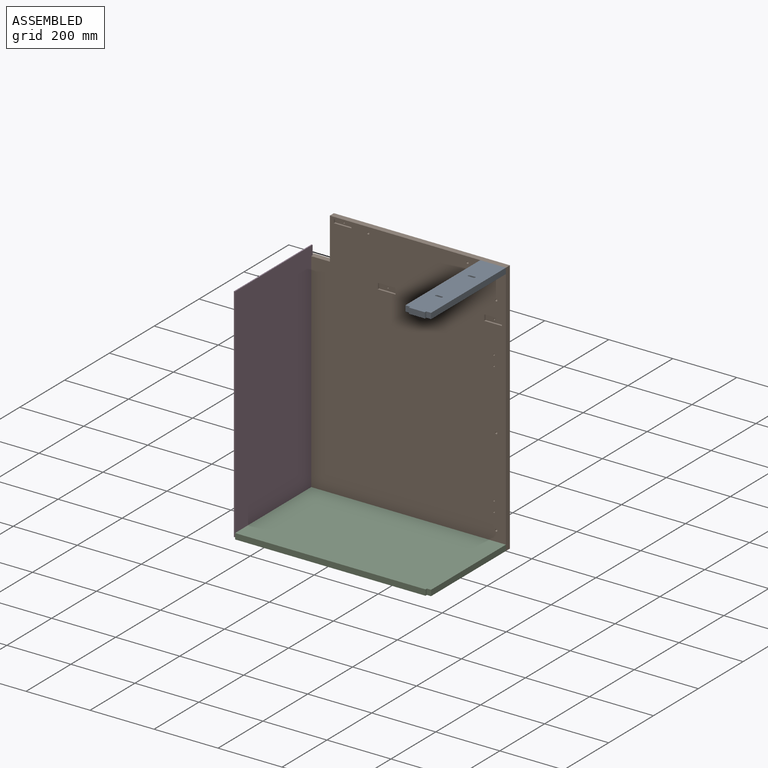
[diagram: assembled view]
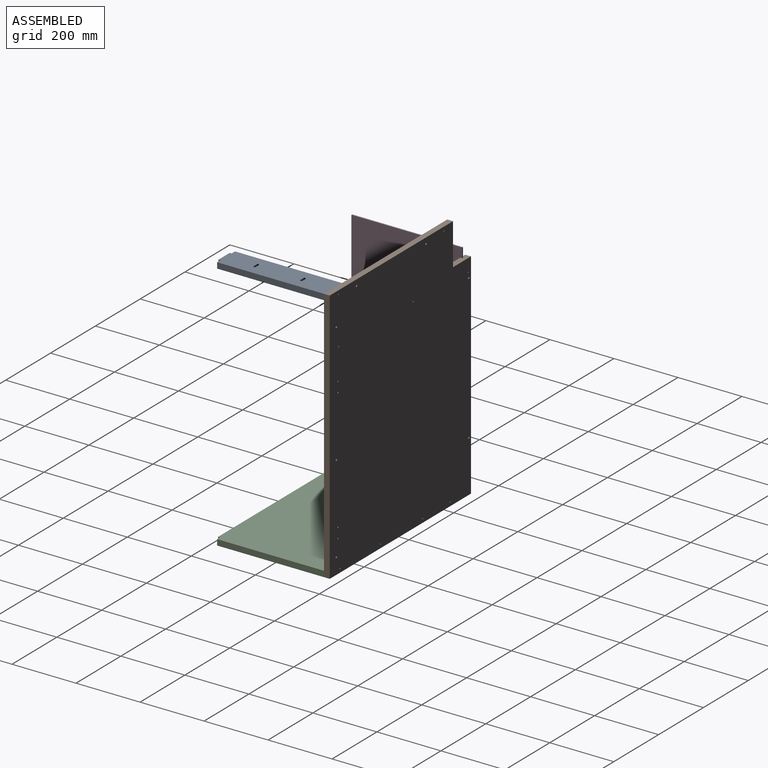
[diagram: assembled view, second angle]
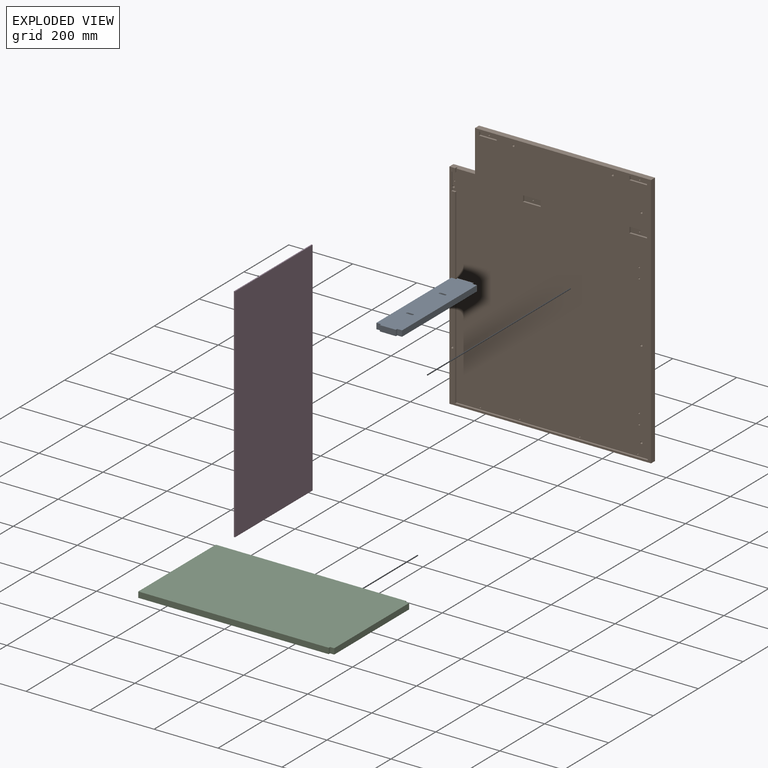
[diagram: exploded view]
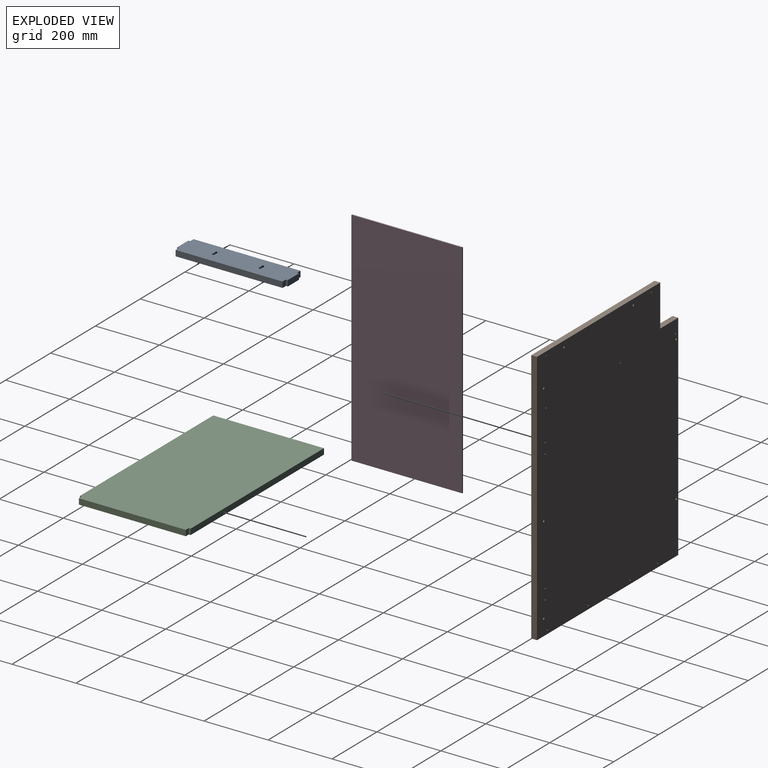
[diagram: exploded view, second angle]
ASSEMBLY  parts=4 mates=3
PART A: 22 faces, bbox 346x18x80 mm
  f0: plane 18x14.81mm, normal (1,0,0), area 266.6mm2, adj f1,f19,f20,f21
  f1: cylinder r=3.5mm len=18mm, axis (0,1,0), area 201.3mm2, adj f0,f2,f20,f21
  f2: plane 18x15mm, normal (-1,0,0), area 270mm2, adj f1,f19,f20,f21
  f3: plane 18x14.81mm, normal (1,0,0), area 266.6mm2, adj f4,f17,f20,f21
  f4: cylinder r=3.5mm len=18mm, axis (0,1,0), area 201.3mm2, adj f3,f5,f20,f21
  f5: plane 18x15mm, normal (-1,0,0), area 270mm2, adj f4,f17,f20,f21
  f6: plane 18x15mm, normal (-1,0,0), area 270mm2, adj f7,f18,f20,f21
  f7: plane 334x18mm, normal (0,0,-1), area 6012mm2, adj f6,f8,f20,f21
  f8: plane 18x15mm, normal (1,0,0), area 270mm2, adj f7,f9,f20,f21
  f9: plane 18x6mm, normal (0,0,-1), area 108mm2, adj f8,f10,f20,f21
  f10: plane 50x18mm, normal (1,0,0), area 900mm2, adj f9,f11,f20,f21
  f11: plane 18x6mm, normal (0,0,1), area 108mm2, adj f10,f12,f20,f21
  f12: plane 18x15mm, normal (1,0,0), area 270mm2, adj f11,f13,f20,f21
  f13: plane 334x18mm, normal (0,0,1), area 6012mm2, adj f12,f14,f20,f21
  f14: plane 18x15mm, normal (-1,0,0), area 270mm2, adj f13,f15,f20,f21
  f15: plane 18x6mm, normal (0,0,1), area 108mm2, adj f14,f16,f20,f21
  f16: plane 50x18mm, normal (-1,0,0), area 900mm2, adj f15,f18,f20,f21
  f17: cylinder r=3.5mm len=18mm, axis (0,1,0), area 197.9mm2, adj f3,f5,f20,f21
  f18: plane 18x6mm, normal (0,0,-1), area 108mm2, adj f6,f16,f20,f21
  f19: cylinder r=3.5mm len=18mm, axis (0,1,0), area 197.9mm2, adj f0,f2,f20,f21
  f20: plane 346x80mm, normal (0,-1,0), area 27033.1mm2, adj f0,f1,f2,f3,f4,f5,f6,f7
  f21: plane 346x80mm, normal (0,1,0), area 27033.1mm2, adj f0,f1,f2,f3,f4,f5,f6,f7
PART B: 59 faces, bbox 630x18x800 mm
  f0: plane 664x614mm, normal (0,-1,0), area 10396.4mm2, adj f5,f12,f13,f14,f15,f16,f28,f32
  f1: plane 55x12mm, normal (0,-1,0), area 647.4mm2, adj f11,f41,f42,f43,f53
  f2: plane 55x18mm, normal (0,-1,0), area 977.4mm2, adj f10,f44,f45,f46,f54
  f3: plane 55x18mm, normal (0,-1,0), area 977.4mm2, adj f9,f47,f48,f49,f55
  f4: plane 130x18mm, normal (-1,0,0), area 2340mm2, adj f5,f27,f30,f58
  f5: plane 80x18mm, normal (0,0,1), area 1416mm2, adj f0,f4,f6,f30,f38,f39,f58
  f6: plane 670x18mm, normal (-1,0,0), area 12060mm2, adj f5,f7,f30,f58
  f7: plane 630x18mm, normal (0,0,-1), area 11340mm2, adj f6,f8,f30,f58
  f8: plane 800x18mm, normal (1,0,0), area 14400mm2, adj f7,f27,f30,f58
  f9: cylinder r=2mm len=12mm, axis (0,-1,0), area 150.8mm2, adj f3,f30
  f10: cylinder r=2mm len=12mm, axis (0,-1,0), area 150.8mm2, adj f2,f30
  f11: cylinder r=2mm len=12mm, axis (0,-1,0), area 150.8mm2, adj f1,f30
  f12: cylinder r=2mm len=12mm, axis (0,-1,0), area 150.8mm2, adj f0,f30
  f13: cylinder r=2mm len=12mm, axis (0,-1,0), area 150.8mm2, adj f0,f30
  f14: cylinder r=2mm len=12mm, axis (0,-1,0), area 150.8mm2, adj f0,f30
  f15: cylinder r=2mm len=12mm, axis (0,-1,0), area 150.8mm2, adj f0,f30
  f16: cylinder r=2mm len=12mm, axis (0,-1,0), area 150.8mm2, adj f0,f30
  f17: cylinder r=3.25mm len=18mm, axis (0,-1,0), area 367.6mm2, adj f30,f58
  f18: cylinder r=3.25mm len=18mm, axis (0,-1,0), area 367.6mm2, adj f30,f58
  f19: cylinder r=3.25mm len=18mm, axis (0,-1,0), area 367.6mm2, adj f30,f58
  f20: cylinder r=3.25mm len=18mm, axis (0,-1,0), area 367.6mm2, adj f30,f58
  f21: cylinder r=3.25mm len=18mm, axis (0,-1,0), area 367.6mm2, adj f30,f58
  f22: cylinder r=3.25mm len=18mm, axis (0,-1,0), area 367.6mm2, adj f30,f58
  f23: cylinder r=2.3mm len=18mm, axis (0,-1,0), area 260.1mm2, adj f30,f58
  f24: cylinder r=2.3mm len=18mm, axis (0,-1,0), area 260.1mm2, adj f30,f58
  f25: cylinder r=2.3mm len=18mm, axis (0,-1,0), area 260.1mm2, adj f30,f58
  f26: cylinder r=2.3mm len=18mm, axis (0,-1,0), area 260.1mm2, adj f30,f58
  f27: plane 550x18mm, normal (0,0,1), area 9900mm2, adj f4,f8,f30,f58
  f28: cylinder r=3.25mm len=18mm, axis (0,-1,0), area 260.4mm2, adj f0,f30,f35,f36,f58
  f29: cylinder r=2mm len=12mm, axis (0,-1,0), area 150.8mm2, adj f30,f31
  f30: plane 800x630mm, normal (0,1,0), area 493188.1mm2, adj f4,f5,f6,f7,f8,f9,f10,f11
  f31: plane 55x12mm, normal (0,-1,0), area 647.4mm2, adj f29,f50,f51,f52,f56
  f32: plane 602x6mm, normal (0,0,1), area 3612mm2, adj f0,f33,f57,f58
  f33: plane 596.5x6mm, normal (1,0,0), area 3579mm2, adj f0,f32,f34,f58
  f34: plane 12x6mm, normal (0,0,1), area 72mm2, adj f0,f33,f35,f58
  f35: plane 9.19x6mm, normal (1,0,0), area 55.2mm2, adj f0,f28,f34,f58
  f36: plane 43.31x6mm, normal (1,0,0), area 259.8mm2, adj f0,f28,f37,f58
  f37: plane 12x6mm, normal (0,0,-1), area 72mm2, adj f0,f36,f38,f58
  f38: plane 12.5x6mm, normal (1,0,0), area 75mm2, adj f0,f5,f37,f58
  f39: plane 652x6mm, normal (-1,0,0), area 3912mm2, adj f0,f5,f40,f58
  f40: plane 598x6mm, normal (0,0,-1), area 3588mm2, adj f0,f39,f57,f58
  f41: plane 12x6mm, normal (1,0,0), area 72mm2, adj f1,f42,f53,f58
  f42: plane 55x6mm, normal (0,0,-1), area 330mm2, adj f1,f41,f43,f58
  f43: plane 12x6mm, normal (-1,0,0), area 72mm2, adj f1,f42,f53,f58
  f44: plane 55x6mm, normal (0,0,-1), area 330mm2, adj f2,f45,f54,f58
  f45: plane 18x6mm, normal (-1,0,0), area 108mm2, adj f2,f44,f46,f58
  f46: plane 55x6mm, normal (0,0,1), area 330mm2, adj f2,f45,f54,f58
  f47: plane 18x6mm, normal (1,0,0), area 108mm2, adj f3,f48,f55,f58
  f48: plane 55x6mm, normal (0,0,-1), area 330mm2, adj f3,f47,f49,f58
  f49: plane 18x6mm, normal (-1,0,0), area 108mm2, adj f3,f48,f55,f58
  f50: plane 55x6mm, normal (0,0,-1), area 330mm2, adj f31,f51,f56,f58
  f51: plane 12x6mm, normal (-1,0,0), area 72mm2, adj f31,f50,f52,f58
  f52: plane 55x6mm, normal (0,0,1), area 330mm2, adj f31,f51,f56,f58
  f53: plane 55x6mm, normal (0,0,1), area 330mm2, adj f1,f41,f43,f58
  f54: plane 18x6mm, normal (1,0,0), area 108mm2, adj f2,f44,f46,f58
  f55: plane 55x6mm, normal (0,0,1), area 330mm2, adj f3,f47,f49,f58
  f56: plane 12x6mm, normal (1,0,0), area 72mm2, adj f31,f50,f52,f58
  f57: plane 12x6mm, normal (-1,0,0), area 72mm2, adj f0,f32,f40,f58
  f58: plane 800x630mm, normal (0,-1,0), area 479542mm2, adj f4,f5,f6,f7,f8,f17,f18,f19
PART C: 10 faces, bbox 346x18x608 mm
  f0: plane 346x18mm, normal (0,0,1), area 6228mm2, adj f1,f7,f8,f9
  f1: plane 595x18mm, normal (-1,0,0), area 10710mm2, adj f0,f2,f8,f9
  f2: plane 18x6mm, normal (0,0,-1), area 108mm2, adj f1,f3,f8,f9
  f3: plane 18x13mm, normal (-1,0,0), area 234mm2, adj f2,f4,f8,f9
  f4: plane 334x18mm, normal (0,0,-1), area 6012mm2, adj f3,f5,f8,f9
  f5: plane 18x13mm, normal (1,0,0), area 234mm2, adj f4,f6,f8,f9
  f6: plane 18x6mm, normal (0,0,-1), area 108mm2, adj f5,f7,f8,f9
  f7: plane 595x18mm, normal (1,0,0), area 10710mm2, adj f0,f6,f8,f9
  f8: plane 608x346mm, normal (0,-1,0), area 210212mm2, adj f0,f1,f2,f3,f4,f5,f6,f7
  f9: plane 608x346mm, normal (0,1,0), area 210212mm2, adj f0,f1,f2,f3,f4,f5,f6,f7
PART D: 6 faces, bbox 346x3.6x694 mm
  f0: plane 346x3.6mm, normal (0,0,1), area 1245.6mm2, adj f1,f3,f4,f5
  f1: plane 694x3.6mm, normal (-1,0,0), area 2498.4mm2, adj f0,f2,f4,f5
  f2: plane 346x3.6mm, normal (0,0,-1), area 1245.6mm2, adj f1,f3,f4,f5
  f3: plane 694x3.6mm, normal (1,0,0), area 2498.4mm2, adj f0,f2,f4,f5
  f4: plane 694x346mm, normal (0,-1,0), area 240124mm2, adj f0,f1,f2,f3
  f5: plane 694x346mm, normal (0,1,0), area 240124mm2, adj f0,f1,f2,f3
PLACE A rot(axis=(-0.58,0.58,-0.58),120deg) t=(-435.72,-2083.74,501.14)mm
PLACE B t=(80.53,-422.27,280.64)mm fixed
PLACE C rot(axis=(0.58,-0.58,-0.58),120deg) t=(-395.07,-1889.9,-262.86)mm
PLACE D rot(axis=(0,0,1),90deg) t=(-472.93,1587.11,283.84)mm
MATE fastened C.f3 <-> B.f58  axis (0,1,0) through (138.67,-428.27,-280.86)mm
MATE fastened D.f4 <-> C.f0  axis (1,0,0) through (-469.33,-768.27,-274.86)mm
MATE fastened A.f14 <-> B.f58  axis (0,1,0) through (138.67,-428.27,519.14)mm
